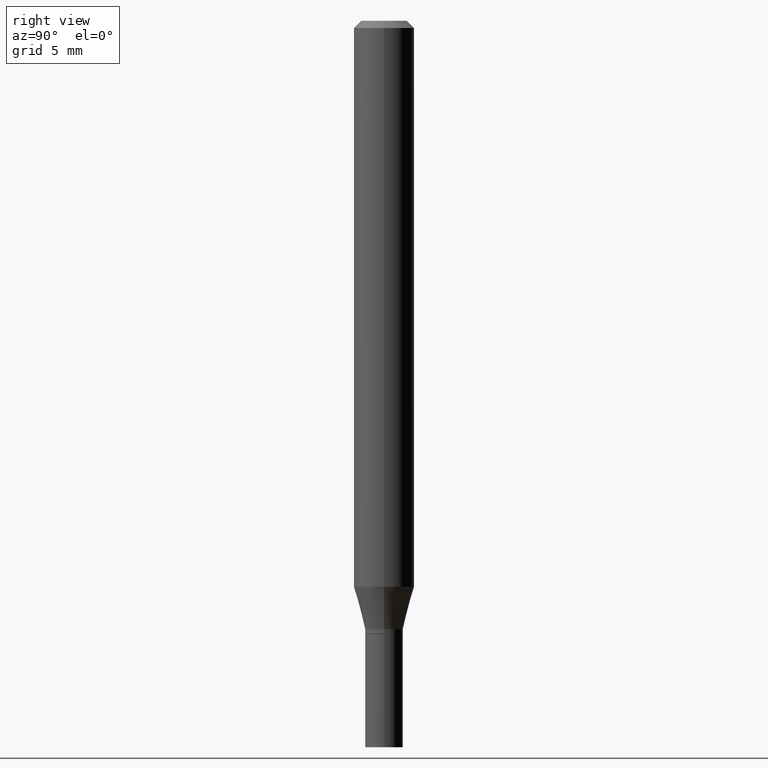
[diagram: clean part render]
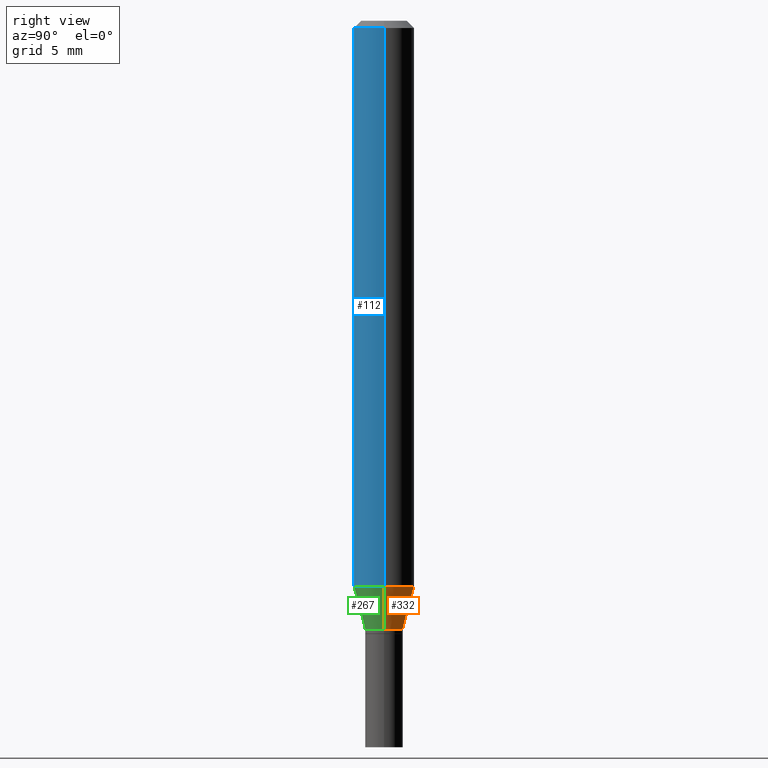
[diagram: same view with three faces highlighted in distinct colors, each labeled with its STEP entity id]
A machine part, right view with three faces highlighted in distinct colors.
Their STEP definitions:

[orange] entity #332 — the highlighted conical surface has half-angle 15 deg.
#3 = CARTESIAN_POINT ( 'NONE',  ( -0.06250000000000000000, -3.634997286606259442E-15, -1.168296806022131262 ) ) ;
#8 = DIRECTION ( 'NONE',  ( 1.000000000000000000, -6.982962677686274599E-15, 0.000000000000000000 ) ) ;
#21 = LINE ( 'NONE', #92, #314 ) ;
#30 = FACE_OUTER_BOUND ( 'NONE', #457, .T. ) ;
#36 = EDGE_CURVE ( 'NONE', #256, #351, #354, .T. ) ;
#40 = CIRCLE ( 'NONE', #292, 0.03899999999999990974 ) ;
#55 = CARTESIAN_POINT ( 'NONE',  ( -0.03899999999999990974, -4.108188894640553562E-15, -1.256000000000000227 ) ) ;
#57 = ORIENTED_EDGE ( 'NONE', *, *, #265, .F. ) ;
#72 = EDGE_CURVE ( 'NONE', #282, #256, #40, .T. ) ;
#92 = CARTESIAN_POINT ( 'NONE',  ( 0.03899999999999990974, -4.657636106016756115E-15, -1.256000000000000227 ) ) ;
#96 = AXIS2_PLACEMENT_3D ( 'NONE', #182, #417, #8 ) ;
#101 = CARTESIAN_POINT ( 'NONE',  ( 0.06250000000000000000, -4.515521663811713727E-15, -1.168296806022131262 ) ) ;
#114 = VECTOR ( 'NONE', #423, 39.37007874015748143 ) ;
#131 = AXIS2_PLACEMENT_3D ( 'NONE', #366, #422, #329 ) ;
#162 = ORIENTED_EDGE ( 'NONE', *, *, #72, .T. ) ;
#174 = DIRECTION ( 'NONE',  ( -2.445468806185136597E-29, 3.491481338843145583E-15, 1.000000000000000000 ) ) ;
#175 = CARTESIAN_POINT ( 'NONE',  ( -0.03899999999999990974, -3.871593090623406502E-15, -1.256000000000000227 ) ) ;
#182 = CARTESIAN_POINT ( 'NONE',  ( 3.071508820568532122E-29, -4.385300561586992092E-15, -1.256000000000000227 ) ) ;
#234 = VERTEX_POINT ( 'NONE', #101 ) ;
#256 = VERTEX_POINT ( 'NONE', #175 ) ;
#257 = EDGE_CURVE ( 'NONE', #234, #351, #285, .T. ) ;
#265 = EDGE_CURVE ( 'NONE', #282, #234, #21, .T. ) ;
#282 = VERTEX_POINT ( 'NONE', #290 ) ;
#285 = CIRCLE ( 'NONE', #131, 0.06250000000000000000 ) ;
#290 = CARTESIAN_POINT ( 'NONE',  ( 0.03899999999999990974, -4.657636106016756115E-15, -1.256000000000000227 ) ) ;
#292 = AXIS2_PLACEMENT_3D ( 'NONE', #357, #174, #319 ) ;
#301 = CONICAL_SURFACE ( 'NONE', #96, 0.03899999999999990974, 0.2617993877991496854 ) ;
#313 = ORIENTED_EDGE ( 'NONE', *, *, #257, .F. ) ;
#314 = VECTOR ( 'NONE', #461, 39.37007874015748143 ) ;
#319 = DIRECTION ( 'NONE',  ( 1.000000000000000000, -6.982962677686274599E-15, 0.000000000000000000 ) ) ;
#329 = DIRECTION ( 'NONE',  ( 1.000000000000000000, -6.982962677686270655E-15, 0.000000000000000000 ) ) ;
#332 = ADVANCED_FACE ( 'NONE', ( #30 ), #301, .T. ) ;
#351 = VERTEX_POINT ( 'NONE', #3 ) ;
#354 = LINE ( 'NONE', #55, #114 ) ;
#357 = CARTESIAN_POINT ( 'NONE',  ( 3.071508820568532122E-29, -4.385300561586992092E-15, -1.256000000000000227 ) ) ;
#366 = CARTESIAN_POINT ( 'NONE',  ( 2.857033395492849775E-29, -4.079086496456322058E-15, -1.168296806022131262 ) ) ;
#417 = DIRECTION ( 'NONE',  ( -2.445468806185136597E-29, 3.491481338843145583E-15, 1.000000000000000000 ) ) ;
#422 = DIRECTION ( 'NONE',  ( -2.445468806185136597E-29, 3.491481338843145583E-15, 1.000000000000000000 ) ) ;
#423 = DIRECTION ( 'NONE',  ( -0.2588190451025210170, 5.211531920934547886E-15, 0.9659258262890682012 ) ) ;
#427 = ORIENTED_EDGE ( 'NONE', *, *, #36, .T. ) ;
#457 = EDGE_LOOP ( 'NONE', ( #162, #427, #313, #57 ) ) ;
#461 = DIRECTION ( 'NONE',  ( 0.2588190451025210170, 1.565188264969624531E-15, 0.9659258262890682012 ) ) ;

[blue] entity #112 — the highlighted cylindrical surface (edge-blend (fillet) strip) has radius 1.5875 mm, axis along (-0, 0, 1).
#3 = CARTESIAN_POINT ( 'NONE',  ( -0.06250000000000000000, -3.634997286606259442E-15, -1.168296806022131262 ) ) ;
#23 = CARTESIAN_POINT ( 'NONE',  ( -0.06250000000000000000, 4.440892098500626162E-16, -3.074334431409316114E-30 ) ) ;
#24 = CARTESIAN_POINT ( 'NONE',  ( -0.06250000000000000000, -1.621640148419421952E-15, -0.01499999999999999944 ) ) ;
#29 = DIRECTION ( 'NONE',  ( -2.445468806185136597E-29, 3.491481338843145583E-15, 1.000000000000000000 ) ) ;
#64 = DIRECTION ( 'NONE',  ( 1.000000000000000000, -6.982962677686266711E-15, 4.876176775795935793E-29 ) ) ;
#78 = EDGE_CURVE ( 'NONE', #234, #345, #138, .T. ) ;
#85 = ORIENTED_EDGE ( 'NONE', *, *, #243, .T. ) ;
#101 = CARTESIAN_POINT ( 'NONE',  ( 0.06250000000000000000, -4.515521663811713727E-15, -1.168296806022131262 ) ) ;
#112 = ADVANCED_FACE ( 'NONE', ( #438 ), #323, .T. ) ;
#136 = LINE ( 'NONE', #23, #189 ) ;
#138 = LINE ( 'NONE', #184, #312 ) ;
#143 = EDGE_LOOP ( 'NONE', ( #310, #85, #451, #463 ) ) ;
#149 = DIRECTION ( 'NONE',  ( 1.000000000000000000, -6.982962677686266711E-15, 0.000000000000000000 ) ) ;
#151 = AXIS2_PLACEMENT_3D ( 'NONE', #460, #29, #64 ) ;
#155 = EDGE_CURVE ( 'NONE', #327, #345, #283, .T. ) ;
#184 = CARTESIAN_POINT ( 'NONE',  ( 0.06250000000000000000, -4.364351673553916694E-16, 3.047610484872459871E-30 ) ) ;
#189 = VECTOR ( 'NONE', #320, 39.37007874015748143 ) ;
#193 = CARTESIAN_POINT ( 'NONE',  ( 0.06250000000000000000, -4.888073874380388472E-16, -0.01499999999999999944 ) ) ;
#234 = VERTEX_POINT ( 'NONE', #101 ) ;
#243 = EDGE_CURVE ( 'NONE', #351, #234, #324, .T. ) ;
#244 = CARTESIAN_POINT ( 'NONE',  ( 2.857033395492849775E-29, -4.079086496456322058E-15, -1.168296806022131262 ) ) ;
#253 = AXIS2_PLACEMENT_3D ( 'NONE', #244, #456, #390 ) ;
#283 = CIRCLE ( 'NONE', #440, 0.06250000000000000000 ) ;
#298 = DIRECTION ( 'NONE',  ( -2.445468806185136597E-29, 3.491481338843145583E-15, 1.000000000000000000 ) ) ;
#310 = ORIENTED_EDGE ( 'NONE', *, *, #428, .F. ) ;
#312 = VECTOR ( 'NONE', #362, 39.37007874015748143 ) ;
#320 = DIRECTION ( 'NONE',  ( -2.445468806185136877E-29, 3.491481338843145188E-15, 1.000000000000000000 ) ) ;
#323 = CYLINDRICAL_SURFACE ( 'NONE', #151, 0.06250000000000000000 ) ;
#324 = CIRCLE ( 'NONE', #253, 0.06250000000000000000 ) ;
#327 = VERTEX_POINT ( 'NONE', #24 ) ;
#345 = VERTEX_POINT ( 'NONE', #193 ) ;
#351 = VERTEX_POINT ( 'NONE', #3 ) ;
#362 = DIRECTION ( 'NONE',  ( -2.445468806185136877E-29, 3.491481338843145188E-15, 1.000000000000000000 ) ) ;
#365 = CARTESIAN_POINT ( 'NONE',  ( 3.668203209277705088E-31, -5.237222008264718399E-17, -0.01499999999999999944 ) ) ;
#390 = DIRECTION ( 'NONE',  ( 1.000000000000000000, -6.982962677686270655E-15, 0.000000000000000000 ) ) ;
#428 = EDGE_CURVE ( 'NONE', #351, #327, #136, .T. ) ;
#438 = FACE_OUTER_BOUND ( 'NONE', #143, .T. ) ;
#440 = AXIS2_PLACEMENT_3D ( 'NONE', #365, #298, #149 ) ;
#451 = ORIENTED_EDGE ( 'NONE', *, *, #78, .T. ) ;
#456 = DIRECTION ( 'NONE',  ( -2.445468806185136597E-29, 3.491481338843145583E-15, 1.000000000000000000 ) ) ;
#460 = CARTESIAN_POINT ( 'NONE',  ( 0.000000000000000000, 0.000000000000000000, 0.000000000000000000 ) ) ;
#463 = ORIENTED_EDGE ( 'NONE', *, *, #155, .F. ) ;

[green] entity #267 — the highlighted conical surface has half-angle 15 deg.
#3 = CARTESIAN_POINT ( 'NONE',  ( -0.06250000000000000000, -3.634997286606259442E-15, -1.168296806022131262 ) ) ;
#17 = CONICAL_SURFACE ( 'NONE', #385, 0.03899999999999990974, 0.2617993877991496854 ) ;
#21 = LINE ( 'NONE', #92, #314 ) ;
#36 = EDGE_CURVE ( 'NONE', #256, #351, #354, .T. ) ;
#48 = ORIENTED_EDGE ( 'NONE', *, *, #243, .F. ) ;
#55 = CARTESIAN_POINT ( 'NONE',  ( -0.03899999999999990974, -4.108188894640553562E-15, -1.256000000000000227 ) ) ;
#87 = ORIENTED_EDGE ( 'NONE', *, *, #36, .F. ) ;
#92 = CARTESIAN_POINT ( 'NONE',  ( 0.03899999999999990974, -4.657636106016756115E-15, -1.256000000000000227 ) ) ;
#97 = FACE_OUTER_BOUND ( 'NONE', #340, .T. ) ;
#101 = CARTESIAN_POINT ( 'NONE',  ( 0.06250000000000000000, -4.515521663811713727E-15, -1.168296806022131262 ) ) ;
#114 = VECTOR ( 'NONE', #423, 39.37007874015748143 ) ;
#117 = EDGE_CURVE ( 'NONE', #256, #282, #188, .T. ) ;
#118 = AXIS2_PLACEMENT_3D ( 'NONE', #247, #430, #215 ) ;
#175 = CARTESIAN_POINT ( 'NONE',  ( -0.03899999999999990974, -3.871593090623406502E-15, -1.256000000000000227 ) ) ;
#188 = CIRCLE ( 'NONE', #118, 0.03899999999999990974 ) ;
#215 = DIRECTION ( 'NONE',  ( 1.000000000000000000, -6.982962677686274599E-15, 0.000000000000000000 ) ) ;
#234 = VERTEX_POINT ( 'NONE', #101 ) ;
#243 = EDGE_CURVE ( 'NONE', #351, #234, #324, .T. ) ;
#244 = CARTESIAN_POINT ( 'NONE',  ( 2.857033395492849775E-29, -4.079086496456322058E-15, -1.168296806022131262 ) ) ;
#247 = CARTESIAN_POINT ( 'NONE',  ( 3.071508820568532122E-29, -4.385300561586992092E-15, -1.256000000000000227 ) ) ;
#252 = ORIENTED_EDGE ( 'NONE', *, *, #117, .T. ) ;
#253 = AXIS2_PLACEMENT_3D ( 'NONE', #244, #456, #390 ) ;
#256 = VERTEX_POINT ( 'NONE', #175 ) ;
#265 = EDGE_CURVE ( 'NONE', #282, #234, #21, .T. ) ;
#267 = ADVANCED_FACE ( 'NONE', ( #97 ), #17, .T. ) ;
#282 = VERTEX_POINT ( 'NONE', #290 ) ;
#290 = CARTESIAN_POINT ( 'NONE',  ( 0.03899999999999990974, -4.657636106016756115E-15, -1.256000000000000227 ) ) ;
#314 = VECTOR ( 'NONE', #461, 39.37007874015748143 ) ;
#321 = CARTESIAN_POINT ( 'NONE',  ( 3.071508820568532122E-29, -4.385300561586992092E-15, -1.256000000000000227 ) ) ;
#324 = CIRCLE ( 'NONE', #253, 0.06250000000000000000 ) ;
#340 = EDGE_LOOP ( 'NONE', ( #87, #252, #353, #48 ) ) ;
#351 = VERTEX_POINT ( 'NONE', #3 ) ;
#353 = ORIENTED_EDGE ( 'NONE', *, *, #265, .T. ) ;
#354 = LINE ( 'NONE', #55, #114 ) ;
#385 = AXIS2_PLACEMENT_3D ( 'NONE', #321, #429, #388 ) ;
#388 = DIRECTION ( 'NONE',  ( 1.000000000000000000, -6.982962677686274599E-15, 0.000000000000000000 ) ) ;
#390 = DIRECTION ( 'NONE',  ( 1.000000000000000000, -6.982962677686270655E-15, 0.000000000000000000 ) ) ;
#423 = DIRECTION ( 'NONE',  ( -0.2588190451025210170, 5.211531920934547886E-15, 0.9659258262890682012 ) ) ;
#429 = DIRECTION ( 'NONE',  ( -2.445468806185136597E-29, 3.491481338843145583E-15, 1.000000000000000000 ) ) ;
#430 = DIRECTION ( 'NONE',  ( -2.445468806185136597E-29, 3.491481338843145583E-15, 1.000000000000000000 ) ) ;
#456 = DIRECTION ( 'NONE',  ( -2.445468806185136597E-29, 3.491481338843145583E-15, 1.000000000000000000 ) ) ;
#461 = DIRECTION ( 'NONE',  ( 0.2588190451025210170, 1.565188264969624531E-15, 0.9659258262890682012 ) ) ;